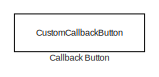
[diagram: root canvas - part 1/4, top center region]
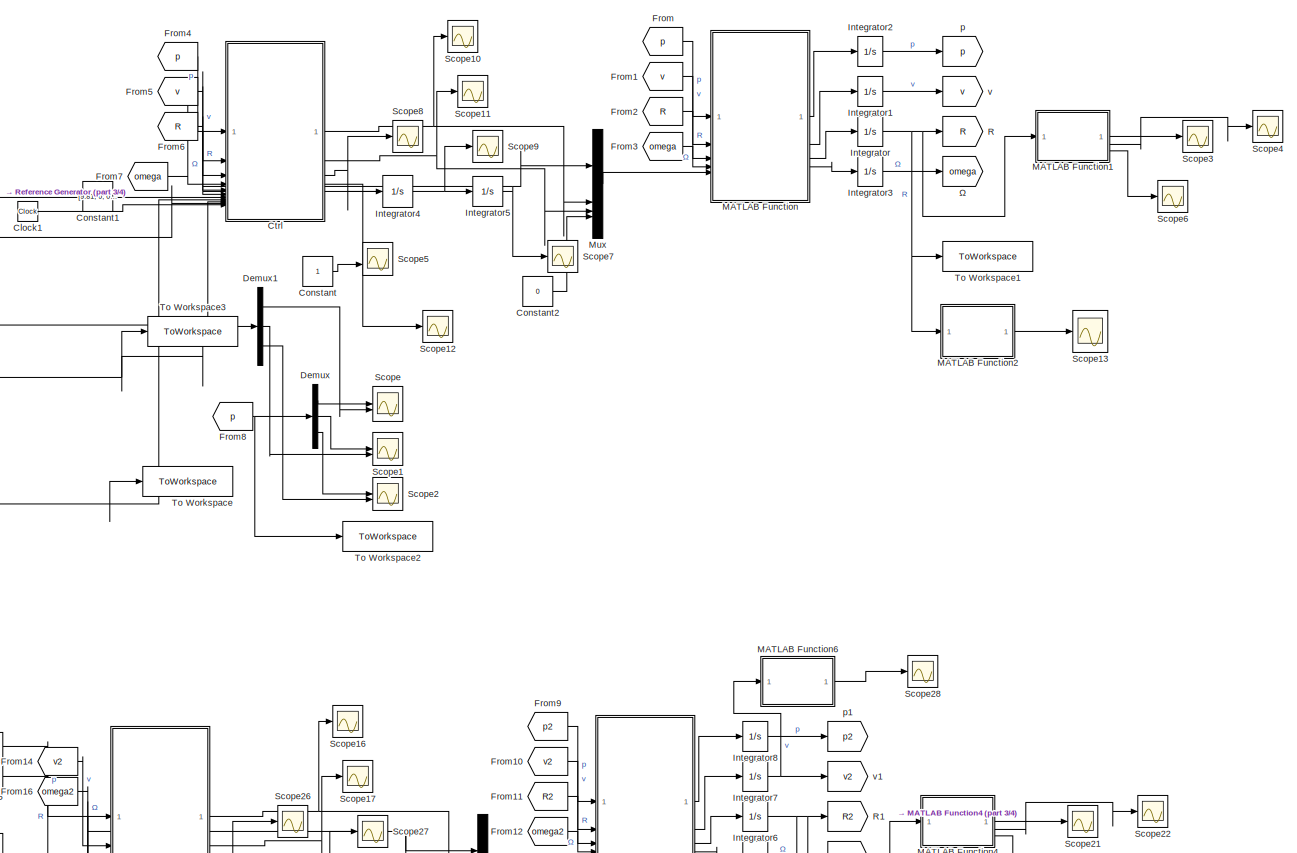
[diagram: root canvas - part 2/4, full width, middle band]
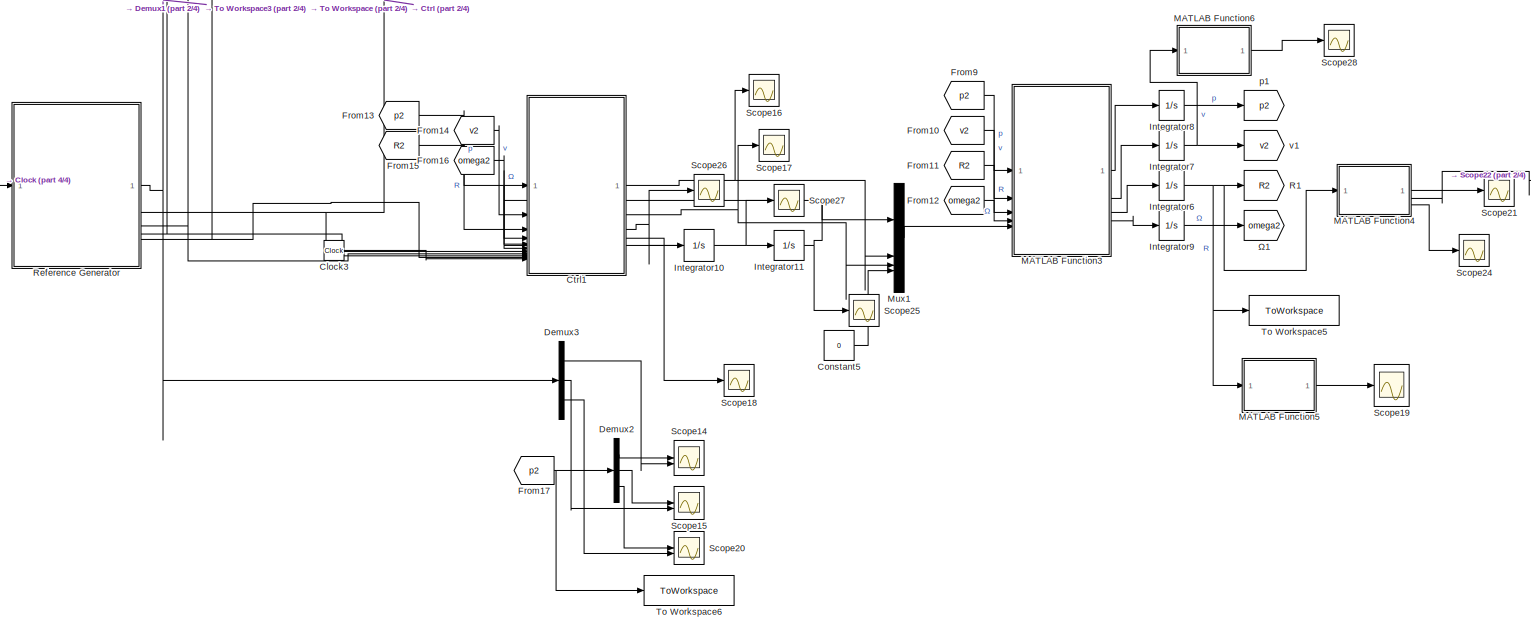
[diagram: root canvas - part 3/4, full width, bottom band]
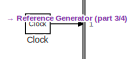
[diagram: root canvas - part 4/4, bottom left region]
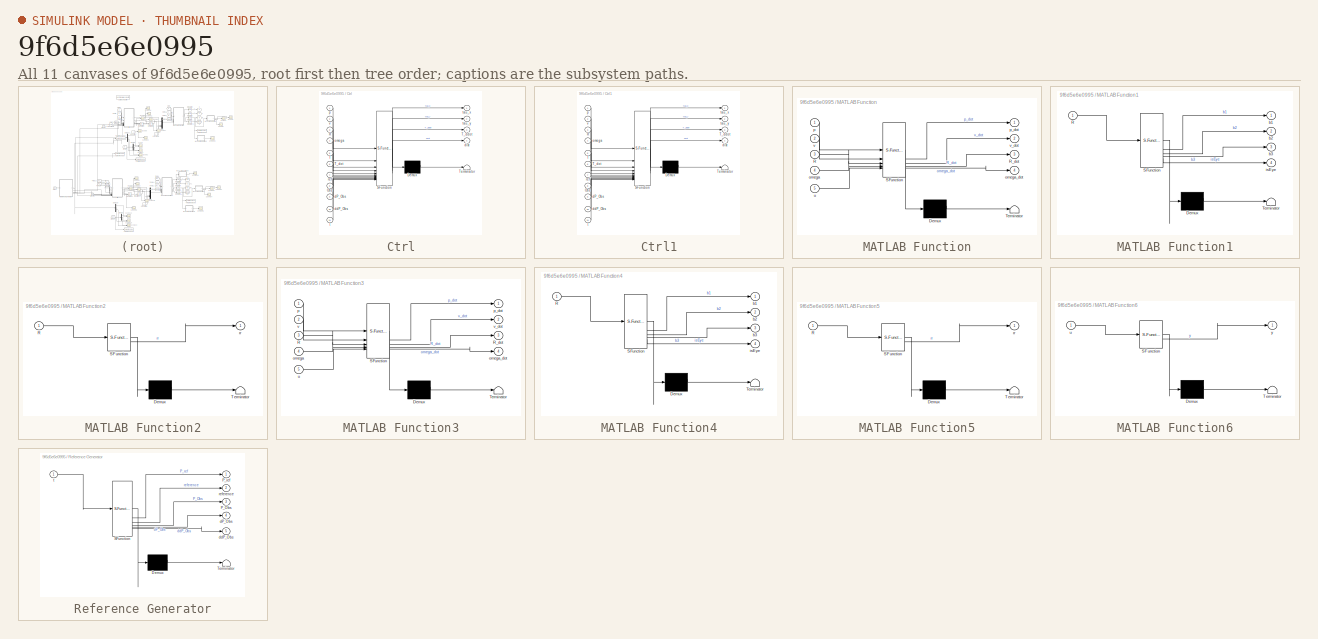
[diagram: thumbnail index - all 11 canvases of the model, root first then tree order]
MODEL slx_9f6d5e6e0995
KIND model
CONFIG AbsTol = auto
CONFIG EnableMultiTasking = on
CONFIG FixedStep = 0.001
CONFIG MaxStep = auto
CONFIG MinStep = auto
CONFIG RelTol = 1e-3
CONFIG SampleTimeConstraint = Unconstrained
CONFIG SolverName = VariableStepAuto
CONFIG StartTime = 0.0
CONFIG StopTime = 40
BLOCK [CustomCallbackButton] Callback Button
  Configuration = {"components":[{"name":"BackgroundImageComponent","settings":{"image":{"size":[0,0],"src":"default","srcOrientation":"Right"},"position":[0,0,1,1]}},{"name":"ButtonStateComponent","settings":{"buttonType":"momentary","clickFcn":"p0 = [10 0 0]';\nv0 = [-0.5 4.5 1]';\nR0 = eye(3);\n\nomega_0 = [0 0 0]';","onValue":1,"position":[0,0,1,1],"pressDelay":"500","pressFcn":"","repeatInterval":"0","states":...<+2132ch>
  CustomBackgroundColor = {"color":[0.9568627450980393,0.9568627450980393,0.9568627450980393],"show":true}
BLOCK [Clock] Clock
BLOCK [Clock] Clock1
BLOCK [Clock] Clock3
BLOCK [Constant] Constant
BLOCK [Constant] Constant1
  Value = [9.81; 0; 0; 0.0]
BLOCK [Constant] Constant2
  Value = 0
BLOCK [Constant] Constant5
  Value = 0
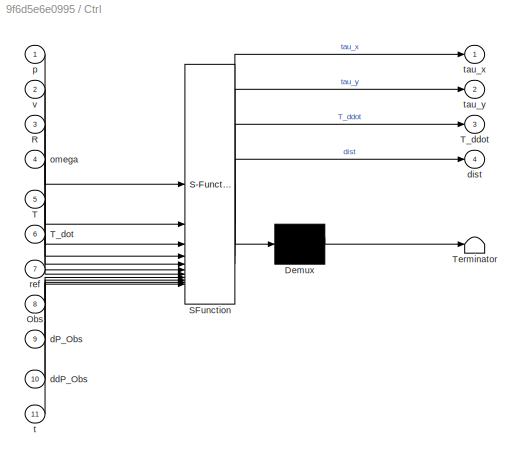
BLOCK [SubSystem] Ctrl
  ErrorFcn = Stateflow.Translate.translate
  PermitHierarchicalResolution = ExplicitOnly
  SFBlockType = MATLAB Function
  TreatAsAtomicUnit = on
BLOCK [Demux] Ctrl/ Demux 
  Outputs = 1
BLOCK [S-Function] Ctrl/ SFunction 
  EnableBusSupport = on
  FunctionName = sf_sfun
  PortCounts = [11 5]
  SFcnIsStateOwnerBlock = off
  SFunctionDeploymentMode = off
  Tag = Stateflow S-Function 3
BLOCK [Terminator] Ctrl/ Terminator 
BLOCK [Inport] Ctrl/Obs
  Port = 8
BLOCK [Inport] Ctrl/R
  Port = 3
BLOCK [Inport] Ctrl/T
  Port = 5
BLOCK [Outport] Ctrl/T_ddot
  Port = 3
BLOCK [Inport] Ctrl/T_dot
  Port = 6
BLOCK [Inport] Ctrl/dP_Obs
  Port = 9
BLOCK [Inport] Ctrl/ddP_Obs
  Port = 10
BLOCK [Outport] Ctrl/dist
  Port = 4
BLOCK [Inport] Ctrl/omega
  Port = 4
BLOCK [Inport] Ctrl/p
BLOCK [Inport] Ctrl/ref
  Port = 7
BLOCK [Inport] Ctrl/t
  Port = 11
BLOCK [Outport] Ctrl/tau_x
BLOCK [Outport] Ctrl/tau_y
  Port = 2
BLOCK [Inport] Ctrl/v
  Port = 2
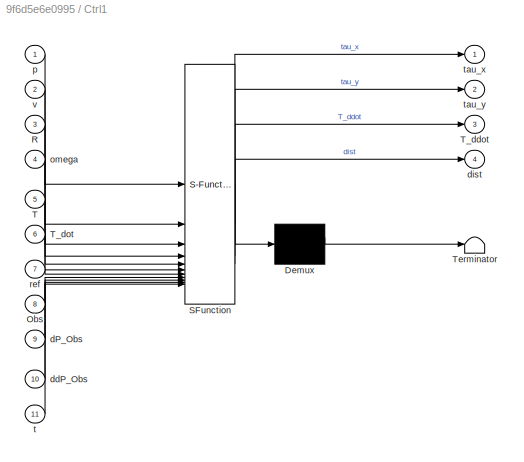
BLOCK [SubSystem] Ctrl1
  ErrorFcn = Stateflow.Translate.translate
  PermitHierarchicalResolution = ExplicitOnly
  SFBlockType = MATLAB Function
  TreatAsAtomicUnit = on
BLOCK [Demux] Ctrl1/ Demux 
  Outputs = 1
BLOCK [S-Function] Ctrl1/ SFunction 
  EnableBusSupport = on
  FunctionName = sf_sfun
  PortCounts = [11 5]
  SFcnIsStateOwnerBlock = off
  SFunctionDeploymentMode = off
  Tag = Stateflow S-Function 6
BLOCK [Terminator] Ctrl1/ Terminator 
BLOCK [Inport] Ctrl1/Obs
  Port = 8
BLOCK [Inport] Ctrl1/R
  Port = 3
BLOCK [Inport] Ctrl1/T
  Port = 5
BLOCK [Outport] Ctrl1/T_ddot
  Port = 3
BLOCK [Inport] Ctrl1/T_dot
  Port = 6
BLOCK [Inport] Ctrl1/dP_Obs
  Port = 9
BLOCK [Inport] Ctrl1/ddP_Obs
  Port = 10
BLOCK [Outport] Ctrl1/dist
  Port = 4
BLOCK [Inport] Ctrl1/omega
  Port = 4
BLOCK [Inport] Ctrl1/p
BLOCK [Inport] Ctrl1/ref
  Port = 7
BLOCK [Inport] Ctrl1/t
  Port = 11
BLOCK [Outport] Ctrl1/tau_x
BLOCK [Outport] Ctrl1/tau_y
  Port = 2
BLOCK [Inport] Ctrl1/v
  Port = 2
BLOCK [Demux] Demux
  Outputs = 3
BLOCK [Demux] Demux1
  Outputs = 3
BLOCK [Demux] Demux2
  Outputs = 3
BLOCK [Demux] Demux3
  Outputs = 3
BLOCK [From] From
  GotoTag = p
  TagVisibility = global
BLOCK [From] From1
  GotoTag = v
  TagVisibility = global
BLOCK [From] From10
  GotoTag = v2
  TagVisibility = global
BLOCK [From] From11
  GotoTag = R2
  TagVisibility = global
BLOCK [From] From12
  GotoTag = omega2
  IconDisplay = Signal name
  TagVisibility = global
BLOCK [From] From13
  GotoTag = p2
  TagVisibility = global
BLOCK [From] From14
  GotoTag = v2
  TagVisibility = global
BLOCK [From] From15
  GotoTag = R2
  TagVisibility = global
BLOCK [From] From16
  GotoTag = omega2
  IconDisplay = Signal name
  TagVisibility = global
BLOCK [From] From17
  GotoTag = p2
  TagVisibility = global
BLOCK [From] From2
  GotoTag = R
  TagVisibility = global
BLOCK [From] From3
  GotoTag = omega
  IconDisplay = Signal name
  TagVisibility = global
BLOCK [From] From4
  GotoTag = p
  TagVisibility = global
BLOCK [From] From5
  GotoTag = v
  TagVisibility = global
BLOCK [From] From6
  GotoTag = R
  TagVisibility = global
BLOCK [From] From7
  GotoTag = omega
  IconDisplay = Signal name
  TagVisibility = global
BLOCK [From] From8
  GotoTag = p
  TagVisibility = global
BLOCK [From] From9
  GotoTag = p2
  TagVisibility = global
BLOCK [Integrator] Integrator
  InitialCondition = R0
BLOCK [Integrator] Integrator1
  InitialCondition = v0
BLOCK [Integrator] Integrator10
  LowerSaturationLimit = -10^6
  UpperSaturationLimit = 0
BLOCK [Integrator] Integrator11
  InitialCondition = 9.81
  LowerSaturationLimit = -1000
  UpperSaturationLimit = 1000
BLOCK [Integrator] Integrator2
  InitialCondition = p0
BLOCK [Integrator] Integrator3
  InitialCondition = omega_0
BLOCK [Integrator] Integrator4
  LowerSaturationLimit = -10^6
  UpperSaturationLimit = 0
BLOCK [Integrator] Integrator5
  InitialCondition = 9.81
  LowerSaturationLimit = -1000
  UpperSaturationLimit = 1000
BLOCK [Integrator] Integrator6
  InitialCondition = R0
BLOCK [Integrator] Integrator7
  InitialCondition = v0
BLOCK [Integrator] Integrator8
  InitialCondition = p0
BLOCK [Integrator] Integrator9
  InitialCondition = omega_0
BLOCK [SubSystem] MATLAB Function
  ErrorFcn = Stateflow.Translate.translate
  PermitHierarchicalResolution = ExplicitOnly
  SFBlockType = MATLAB Function
  TreatAsAtomicUnit = on
BLOCK [Demux] MATLAB Function/ Demux 
  Outputs = 1
BLOCK [S-Function] MATLAB Function/ SFunction 
  EnableBusSupport = on
  FunctionName = sf_sfun
  PortCounts = [5 5]
  SFcnIsStateOwnerBlock = off
  SFunctionDeploymentMode = off
  Tag = Stateflow S-Function 2
BLOCK [Terminator] MATLAB Function/ Terminator 
BLOCK [Inport] MATLAB Function/R
  Port = 3
BLOCK [Outport] MATLAB Function/R_dot
  Port = 3
BLOCK [Inport] MATLAB Function/omega
  Port = 4
BLOCK [Outport] MATLAB Function/omega_dot
  Port = 4
BLOCK [Inport] MATLAB Function/p
BLOCK [Outport] MATLAB Function/p_dot
BLOCK [Inport] MATLAB Function/u
  Port = 5
BLOCK [Inport] MATLAB Function/v
  Port = 2
BLOCK [Outport] MATLAB Function/v_dot
  Port = 2
BLOCK [SubSystem] MATLAB Function1
  ErrorFcn = Stateflow.Translate.translate
  PermitHierarchicalResolution = ExplicitOnly
  SFBlockType = MATLAB Function
  TreatAsAtomicUnit = on
BLOCK [Demux] MATLAB Function1/ Demux 
  Outputs = 1
BLOCK [S-Function] MATLAB Function1/ SFunction 
  EnableBusSupport = on
  FunctionName = sf_sfun
  PortCounts = [1 5]
  SFcnIsStateOwnerBlock = off
  SFunctionDeploymentMode = off
  Tag = Stateflow S-Function 1
BLOCK [Terminator] MATLAB Function1/ Terminator 
BLOCK [Inport] MATLAB Function1/R
BLOCK [Outport] MATLAB Function1/b1
BLOCK [Outport] MATLAB Function1/b2
  Port = 2
BLOCK [Outport] MATLAB Function1/b3
  Port = 3
BLOCK [Outport] MATLAB Function1/isEye
  Port = 4
BLOCK [SubSystem] MATLAB Function2
  ErrorFcn = Stateflow.Translate.translate
  PermitHierarchicalResolution = ExplicitOnly
  SFBlockType = MATLAB Function
  TreatAsAtomicUnit = on
BLOCK [Demux] MATLAB Function2/ Demux 
  Outputs = 1
BLOCK [S-Function] MATLAB Function2/ SFunction 
  EnableBusSupport = on
  FunctionName = sf_sfun
  PortCounts = [1 2]
  SFcnIsStateOwnerBlock = off
  SFunctionDeploymentMode = off
  Tag = Stateflow S-Function 4
BLOCK [Terminator] MATLAB Function2/ Terminator 
BLOCK [Inport] MATLAB Function2/R
BLOCK [Outport] MATLAB Function2/rr
BLOCK [SubSystem] MATLAB Function3
  ErrorFcn = Stateflow.Translate.translate
  PermitHierarchicalResolution = ExplicitOnly
  SFBlockType = MATLAB Function
  TreatAsAtomicUnit = on
BLOCK [Demux] MATLAB Function3/ Demux 
  Outputs = 1
BLOCK [S-Function] MATLAB Function3/ SFunction 
  EnableBusSupport = on
  FunctionName = sf_sfun
  PortCounts = [5 5]
  SFcnIsStateOwnerBlock = off
  SFunctionDeploymentMode = off
  Tag = Stateflow S-Function 7
BLOCK [Terminator] MATLAB Function3/ Terminator 
BLOCK [Inport] MATLAB Function3/R
  Port = 3
BLOCK [Outport] MATLAB Function3/R_dot
  Port = 3
BLOCK [Inport] MATLAB Function3/omega
  Port = 4
BLOCK [Outport] MATLAB Function3/omega_dot
  Port = 4
BLOCK [Inport] MATLAB Function3/p
BLOCK [Outport] MATLAB Function3/p_dot
BLOCK [Inport] MATLAB Function3/u
  Port = 5
BLOCK [Inport] MATLAB Function3/v
  Port = 2
BLOCK [Outport] MATLAB Function3/v_dot
  Port = 2
BLOCK [SubSystem] MATLAB Function4
  ErrorFcn = Stateflow.Translate.translate
  PermitHierarchicalResolution = ExplicitOnly
  SFBlockType = MATLAB Function
  TreatAsAtomicUnit = on
BLOCK [Demux] MATLAB Function4/ Demux 
  Outputs = 1
BLOCK [S-Function] MATLAB Function4/ SFunction 
  EnableBusSupport = on
  FunctionName = sf_sfun
  PortCounts = [1 5]
  SFcnIsStateOwnerBlock = off
  SFunctionDeploymentMode = off
  Tag = Stateflow S-Function 8
BLOCK [Terminator] MATLAB Function4/ Terminator 
BLOCK [Inport] MATLAB Function4/R
BLOCK [Outport] MATLAB Function4/b1
BLOCK [Outport] MATLAB Function4/b2
  Port = 2
BLOCK [Outport] MATLAB Function4/b3
  Port = 3
BLOCK [Outport] MATLAB Function4/isEye
  Port = 4
BLOCK [SubSystem] MATLAB Function5
  ErrorFcn = Stateflow.Translate.translate
  PermitHierarchicalResolution = ExplicitOnly
  SFBlockType = MATLAB Function
  TreatAsAtomicUnit = on
BLOCK [Demux] MATLAB Function5/ Demux 
  Outputs = 1
BLOCK [S-Function] MATLAB Function5/ SFunction 
  EnableBusSupport = on
  FunctionName = sf_sfun
  PortCounts = [1 2]
  SFcnIsStateOwnerBlock = off
  SFunctionDeploymentMode = off
  Tag = Stateflow S-Function 9
BLOCK [Terminator] MATLAB Function5/ Terminator 
BLOCK [Inport] MATLAB Function5/R
BLOCK [Outport] MATLAB Function5/rr
BLOCK [SubSystem] MATLAB Function6
  ErrorFcn = Stateflow.Translate.translate
  PermitHierarchicalResolution = ExplicitOnly
  SFBlockType = MATLAB Function
  TreatAsAtomicUnit = on
BLOCK [Demux] MATLAB Function6/ Demux 
  Outputs = 1
BLOCK [S-Function] MATLAB Function6/ SFunction 
  EnableBusSupport = on
  FunctionName = sf_sfun
  PortCounts = [1 2]
  SFcnIsStateOwnerBlock = off
  SFunctionDeploymentMode = off
  Tag = Stateflow S-Function 11
BLOCK [Terminator] MATLAB Function6/ Terminator 
BLOCK [Inport] MATLAB Function6/u
BLOCK [Outport] MATLAB Function6/y
BLOCK [Mux] Mux
  DisplayOption = bar
BLOCK [Mux] Mux1
  DisplayOption = bar
BLOCK [Goto] R
  GotoTag = R
  NameLocation = right
  TagVisibility = global
BLOCK [Goto] R1
  GotoTag = R2
  NameLocation = right
  TagVisibility = global
BLOCK [SubSystem] Reference Generator
  ErrorFcn = Stateflow.Translate.translate
  PermitHierarchicalResolution = ExplicitOnly
  SFBlockType = MATLAB Function
  TreatAsAtomicUnit = on
BLOCK [Demux] Reference Generator/ Demux 
  Outputs = 1
BLOCK [S-Function] Reference Generator/ SFunction 
  EnableBusSupport = on
  FunctionName = sf_sfun
  PortCounts = [1 6]
  SFcnIsStateOwnerBlock = off
  SFunctionDeploymentMode = off
  Tag = Stateflow S-Function 5
BLOCK [Terminator] Reference Generator/ Terminator 
BLOCK [Outport] Reference Generator/P_Obs
  Port = 3
BLOCK [Outport] Reference Generator/P_ref
BLOCK [Outport] Reference Generator/dP_Obs
  Port = 4
BLOCK [Outport] Reference Generator/ddP_Obs
  Port = 5
BLOCK [Outport] Reference Generator/reference
  Port = 2
BLOCK [Inport] Reference Generator/t
BLOCK [Scope] Scope
  Floating = off
  NumInputPorts = 2
  ScopeSpecificationString = Simulink.scopes.TimeScopeBlockCfg('CurrentConfiguration', extmgr.ConfigurationSet(extmgr.Configuration('Core','General UI',true),extmgr.Configuration('Core','Source UI',true),extmgr.Configuration('Sources','WiredSimulink',true),extmgr.Configuration('Visuals','Time Domain',true,'SerializedDisplays',{struct('MinYLimReal','-14.68395','MaxYLimReal','20.03251','YLabelReal','','MinYLimMag','0.00000','Ma...<+1479ch>
BLOCK [Scope] Scope1
  Floating = off
  NumInputPorts = 2
  ScopeSpecificationString = Simulink.scopes.TimeScopeBlockCfg('CurrentConfiguration', extmgr.ConfigurationSet(extmgr.Configuration('Core','General UI',true),extmgr.Configuration('Core','Source UI',true),extmgr.Configuration('Sources','WiredSimulink',true,'DataLoggingVariableName','ScopeData1'),extmgr.Configuration('Visuals','Time Domain',true,'SerializedDisplays',{struct('MinYLimReal','-12.71877','MaxYLimReal','14.4718','YLa...<+1541ch>
BLOCK [Scope] Scope10
  Floating = off
  NumInputPorts = 1
  ScopeSpecificationString = Simulink.scopes.TimeScopeBlockCfg('CurrentConfiguration', extmgr.ConfigurationSet(extmgr.Configuration('Core','General UI',true),extmgr.Configuration('Core','Source UI',true),extmgr.Configuration('Sources','WiredSimulink',true,'DataLoggingVariableName','ScopeData4'),extmgr.Configuration('Visuals','Time Domain',true,'SerializedDisplays',{struct('MinYLimReal','-0.97119','MaxYLimReal','0.66096','YLab...<+1504ch>
BLOCK [Scope] Scope11
  Floating = off
  NumInputPorts = 1
  ScopeSpecificationString = Simulink.scopes.TimeScopeBlockCfg('CurrentConfiguration', extmgr.ConfigurationSet(extmgr.Configuration('Core','General UI',true),extmgr.Configuration('Core','Source UI',true),extmgr.Configuration('Sources','WiredSimulink',true,'DataLoggingVariableName','ScopeData1'),extmgr.Configuration('Visuals','Time Domain',true,'SerializedDisplays',{struct('MinYLimReal','-1.02087','MaxYLimReal','0.48265','YLab...<+1502ch>
BLOCK [Scope] Scope12
  Floating = off
  NumInputPorts = 1
  ScopeSpecificationString = Simulink.scopes.TimeScopeBlockCfg('CurrentConfiguration', extmgr.ConfigurationSet(extmgr.Configuration('Core','General UI',true),extmgr.Configuration('Core','Source UI',true),extmgr.Configuration('Sources','WiredSimulink',true,'DataLoggingVariableName','ScopeData1'),extmgr.Configuration('Visuals','Time Domain',true,'SerializedDisplays',{struct('MinYLimReal','34.16573','MaxYLimReal','37.03978','YLa...<+1482ch>
BLOCK [Scope] Scope13
  Floating = off
  NumInputPorts = 1
  ScopeSpecificationString = Simulink.scopes.TimeScopeBlockCfg('CurrentConfiguration', extmgr.ConfigurationSet(extmgr.Configuration('Core','General UI',true),extmgr.Configuration('Core','Source UI',true),extmgr.Configuration('Sources','WiredSimulink',true,'DataLoggingVariableName','ScopeData1'),extmgr.Configuration('Visuals','Time Domain',true,'SerializedDisplays',{struct('MinYLimReal','-224.08054','MaxYLimReal','224.21434','...<+1570ch>
BLOCK [Scope] Scope14
  Floating = off
  NumInputPorts = 2
  ScopeSpecificationString = Simulink.scopes.TimeScopeBlockCfg('CurrentConfiguration', extmgr.ConfigurationSet(extmgr.Configuration('Core','General UI',true),extmgr.Configuration('Core','Source UI',true),extmgr.Configuration('Sources','WiredSimulink',true,'DataLoggingVariableName','ScopeData2'),extmgr.Configuration('Visuals','Time Domain',true,'SerializedDisplays',{struct('MinYLimReal','-14.68395','MaxYLimReal','20.03251','YL...<+1519ch>
BLOCK [Scope] Scope15
  Floating = off
  NumInputPorts = 2
  ScopeSpecificationString = Simulink.scopes.TimeScopeBlockCfg('CurrentConfiguration', extmgr.ConfigurationSet(extmgr.Configuration('Core','General UI',true),extmgr.Configuration('Core','Source UI',true),extmgr.Configuration('Sources','WiredSimulink',true,'DataLoggingVariableName','ScopeData3'),extmgr.Configuration('Visuals','Time Domain',true,'SerializedDisplays',{struct('MinYLimReal','-12.71877','MaxYLimReal','14.4718','YLa...<+1542ch>
BLOCK [Scope] Scope16
  Floating = off
  NumInputPorts = 1
  ScopeSpecificationString = Simulink.scopes.TimeScopeBlockCfg('CurrentConfiguration', extmgr.ConfigurationSet(extmgr.Configuration('Core','General UI',true),extmgr.Configuration('Core','Source UI',true),extmgr.Configuration('Sources','WiredSimulink',true,'DataLoggingVariableName','ScopeData4'),extmgr.Configuration('Visuals','Time Domain',true,'SerializedDisplays',{struct('MinYLimReal','-0.97119','MaxYLimReal','0.66096','YLab...<+1504ch>
BLOCK [Scope] Scope17
  Floating = off
  NumInputPorts = 1
  ScopeSpecificationString = Simulink.scopes.TimeScopeBlockCfg('CurrentConfiguration', extmgr.ConfigurationSet(extmgr.Configuration('Core','General UI',true),extmgr.Configuration('Core','Source UI',true),extmgr.Configuration('Sources','WiredSimulink',true,'DataLoggingVariableName','ScopeData5'),extmgr.Configuration('Visuals','Time Domain',true,'SerializedDisplays',{struct('MinYLimReal','-1.02087','MaxYLimReal','0.48265','YLab...<+1502ch>
BLOCK [Scope] Scope18
  Floating = off
  NumInputPorts = 1
  ScopeSpecificationString = Simulink.scopes.TimeScopeBlockCfg('CurrentConfiguration', extmgr.ConfigurationSet(extmgr.Configuration('Core','General UI',true),extmgr.Configuration('Core','Source UI',true),extmgr.Configuration('Sources','WiredSimulink',true,'DataLoggingVariableName','ScopeData6'),extmgr.Configuration('Visuals','Time Domain',true,'SerializedDisplays',{struct('MinYLimReal','34.16573','MaxYLimReal','37.03978','YLa...<+1482ch>
BLOCK [Scope] Scope19
  Floating = off
  NumInputPorts = 1
  ScopeSpecificationString = Simulink.scopes.TimeScopeBlockCfg('CurrentConfiguration', extmgr.ConfigurationSet(extmgr.Configuration('Core','General UI',true),extmgr.Configuration('Core','Source UI',true),extmgr.Configuration('Sources','WiredSimulink',true,'DataLoggingVariableName','ScopeData7'),extmgr.Configuration('Visuals','Time Domain',true,'SerializedDisplays',{struct('MinYLimReal','-224.08054','MaxYLimReal','224.21434','...<+1570ch>
BLOCK [Scope] Scope2
  Floating = off
  NumInputPorts = 2
  ScopeSpecificationString = Simulink.scopes.TimeScopeBlockCfg('CurrentConfiguration', extmgr.ConfigurationSet(extmgr.Configuration('Core','General UI',true),extmgr.Configuration('Core','Source UI',true),extmgr.Configuration('Sources','WiredSimulink',true,'DataLoggingVariableName','ScopeData2'),extmgr.Configuration('Visuals','Time Domain',true,'SerializedDisplays',{struct('MinYLimReal','-5.06384','MaxYLimReal','14.06358','YLa...<+1543ch>
BLOCK [Scope] Scope20
  Floating = off
  NumInputPorts = 2
  ScopeSpecificationString = Simulink.scopes.TimeScopeBlockCfg('CurrentConfiguration', extmgr.ConfigurationSet(extmgr.Configuration('Core','General UI',true),extmgr.Configuration('Core','Source UI',true),extmgr.Configuration('Sources','WiredSimulink',true,'DataLoggingVariableName','ScopeData8'),extmgr.Configuration('Visuals','Time Domain',true,'SerializedDisplays',{struct('MinYLimReal','-7.71246','MaxYLimReal','4.37252','YLab...<+1540ch>
BLOCK [Scope] Scope21
  Floating = off
  NumInputPorts = 1
  ScopeSpecificationString = Simulink.scopes.TimeScopeBlockCfg('CurrentConfiguration', extmgr.ConfigurationSet(extmgr.Configuration('Core','General UI',true),extmgr.Configuration('Core','Source UI',true),extmgr.Configuration('Sources','WiredSimulink',true,'DataLoggingVariableName','ScopeData9'),extmgr.Configuration('Visuals','Time Domain',true,'SerializedDisplays',{struct('MinYLimReal','0.99906','MaxYLimReal','1.0001','YLabel...<+1461ch>
BLOCK [Scope] Scope22
  Floating = off
  NumInputPorts = 1
  ScopeSpecificationString = Simulink.scopes.TimeScopeBlockCfg('CurrentConfiguration', extmgr.ConfigurationSet(extmgr.Configuration('Core','General UI',true),extmgr.Configuration('Core','Source UI',true),extmgr.Configuration('Sources','WiredSimulink',true,'DataLoggingVariableName','ScopeData10'),extmgr.Configuration('Visuals','Time Domain',true,'SerializedDisplays',{struct('MinYLimReal','0.98055','MaxYLimReal','1.00216','YLab...<+1466ch>
BLOCK [Scope] Scope24
  Floating = off
  NumInputPorts = 1
  ScopeSpecificationString = Simulink.scopes.TimeScopeBlockCfg('CurrentConfiguration', extmgr.ConfigurationSet(extmgr.Configuration('Core','General UI',true),extmgr.Configuration('Core','Source UI',true),extmgr.Configuration('Sources','WiredSimulink',true,'DataLoggingVariableName','ScopeData12'),extmgr.Configuration('Visuals','Time Domain',true,'SerializedDisplays',{struct('MinYLimReal','-0.000012','MaxYLimReal','0.000001','Y...<+1535ch>
BLOCK [Scope] Scope25
  Floating = off
  NumInputPorts = 1
  ScopeSpecificationString = Simulink.scopes.TimeScopeBlockCfg('CurrentConfiguration', extmgr.ConfigurationSet(extmgr.Configuration('Core','General UI',true),extmgr.Configuration('Core','Source UI',true),extmgr.Configuration('Sources','WiredSimulink',true,'DataLoggingVariableName','ScopeData13'),extmgr.Configuration('Visuals','Time Domain',true,'SerializedDisplays',{struct('MinYLimReal','9.46273','MaxYLimReal','12.00036','YLa...<+1506ch>
BLOCK [Scope] Scope26
  Floating = off
  NumInputPorts = 1
  ScopeSpecificationString = Simulink.scopes.TimeScopeBlockCfg('CurrentConfiguration', extmgr.ConfigurationSet(extmgr.Configuration('Core','General UI',true),extmgr.Configuration('Core','Source UI',true),extmgr.Configuration('Sources','WiredSimulink',true,'DataLoggingVariableName','ScopeData14'),extmgr.Configuration('Visuals','Time Domain',true,'SerializedDisplays',{struct('MinYLimReal','-63.24381','MaxYLimReal','52.93196','Y...<+1485ch>
BLOCK [Scope] Scope27
  Floating = off
  NumInputPorts = 1
  ScopeSpecificationString = Simulink.scopes.TimeScopeBlockCfg('CurrentConfiguration', extmgr.ConfigurationSet(extmgr.Configuration('Core','General UI',true),extmgr.Configuration('Core','Source UI',true),extmgr.Configuration('Sources','WiredSimulink',true,'DataLoggingVariableName','ScopeData15'),extmgr.Configuration('Visuals','Time Domain',true,'SerializedDisplays',{struct('MinYLimReal','-6.34101','MaxYLimReal','6.35909','YLa...<+1460ch>
BLOCK [Scope] Scope28
  Floating = off
  NumInputPorts = 1
  ScopeSpecificationString = Simulink.scopes.TimeScopeBlockCfg('CurrentConfiguration', extmgr.ConfigurationSet(extmgr.Configuration('Core','General UI',true),extmgr.Configuration('Core','Source UI',true),extmgr.Configuration('Sources','WiredSimulink',true,'DataLoggingVariableName','ScopeData1'),extmgr.Configuration('Visuals','Time Domain',true,'SerializedDisplays',{struct('MinYLimReal','-0.34262','MaxYLimReal','18.96988','YLa...<+1468ch>
BLOCK [Scope] Scope3
  Floating = off
  NumInputPorts = 1
  ScopeSpecificationString = Simulink.scopes.TimeScopeBlockCfg('CurrentConfiguration', extmgr.ConfigurationSet(extmgr.Configuration('Core','General UI',true),extmgr.Configuration('Core','Source UI',true),extmgr.Configuration('Sources','WiredSimulink',true,'DataLoggingVariableName','ScopeData3'),extmgr.Configuration('Visuals','Time Domain',true,'SerializedDisplays',{struct('MinYLimReal','0.99906','MaxYLimReal','1.0001','YLabel...<+1461ch>
BLOCK [Scope] Scope4
  Floating = off
  NumInputPorts = 1
  ScopeSpecificationString = Simulink.scopes.TimeScopeBlockCfg('CurrentConfiguration', extmgr.ConfigurationSet(extmgr.Configuration('Core','General UI',true),extmgr.Configuration('Core','Source UI',true),extmgr.Configuration('Sources','WiredSimulink',true,'DataLoggingVariableName','ScopeData4'),extmgr.Configuration('Visuals','Time Domain',true,'SerializedDisplays',{struct('MinYLimReal','0.98055','MaxYLimReal','1.00216','YLabe...<+1465ch>
BLOCK [Scope] Scope5
  Floating = off
  NumInputPorts = 2
  ScopeSpecificationString = Simulink.scopes.TimeScopeBlockCfg('CurrentConfiguration', extmgr.ConfigurationSet(extmgr.Configuration('Core','General UI',true),extmgr.Configuration('Core','Source UI',true),extmgr.Configuration('Sources','WiredSimulink',true,'DataLoggingVariableName','ScopeData1'),extmgr.Configuration('Visuals','Time Domain',true,'SerializedDisplays',{struct('MinYLimReal','-2.17486','MaxYLimReal','3.02509','YLab...<+1512ch>
BLOCK [Scope] Scope6
  Floating = off
  NumInputPorts = 1
  ScopeSpecificationString = Simulink.scopes.TimeScopeBlockCfg('CurrentConfiguration', extmgr.ConfigurationSet(extmgr.Configuration('Core','General UI',true),extmgr.Configuration('Core','Source UI',true),extmgr.Configuration('Sources','WiredSimulink',true,'DataLoggingVariableName','ScopeData1'),extmgr.Configuration('Visuals','Time Domain',true,'SerializedDisplays',{struct('MinYLimReal','-0.000012','MaxYLimReal','0.000001','YL...<+1534ch>
BLOCK [Scope] Scope7
  Floating = off
  NumInputPorts = 1
  ScopeSpecificationString = Simulink.scopes.TimeScopeBlockCfg('CurrentConfiguration', extmgr.ConfigurationSet(extmgr.Configuration('Core','General UI',true),extmgr.Configuration('Core','Source UI',true),extmgr.Configuration('Sources','WiredSimulink',true,'DataLoggingVariableName','ScopeData2'),extmgr.Configuration('Visuals','Time Domain',true,'SerializedDisplays',{struct('MinYLimReal','9.46273','MaxYLimReal','12.00036','YLab...<+1505ch>
BLOCK [Scope] Scope8
  Floating = off
  NumInputPorts = 1
  ScopeSpecificationString = Simulink.scopes.TimeScopeBlockCfg('CurrentConfiguration', extmgr.ConfigurationSet(extmgr.Configuration('Core','General UI',true),extmgr.Configuration('Core','Source UI',true),extmgr.Configuration('Sources','WiredSimulink',true,'DataLoggingVariableName','ScopeData2'),extmgr.Configuration('Visuals','Time Domain',true,'SerializedDisplays',{struct('MinYLimReal','-63.24381','MaxYLimReal','52.93196','YL...<+1484ch>
BLOCK [Scope] Scope9
  Floating = off
  NumInputPorts = 1
  ScopeSpecificationString = Simulink.scopes.TimeScopeBlockCfg('CurrentConfiguration', extmgr.ConfigurationSet(extmgr.Configuration('Core','General UI',true),extmgr.Configuration('Core','Source UI',true),extmgr.Configuration('Sources','WiredSimulink',true,'DataLoggingVariableName','ScopeData3'),extmgr.Configuration('Visuals','Time Domain',true,'SerializedDisplays',{struct('MinYLimReal','-6.34101','MaxYLimReal','6.35909','YLab...<+1459ch>
BLOCK [ToWorkspace] To Workspace
  FixptAsFi = on
  MaxDataPoints = inf
  SampleTime = 0.1
  SaveFormat = Structure With Time
  VariableName = Obstacles
BLOCK [ToWorkspace] To Workspace1
  FixptAsFi = on
  MaxDataPoints = inf
  SampleTime = 0.1
  SaveFormat = Structure With Time
  VariableName = Attitude
BLOCK [ToWorkspace] To Workspace2
  FixptAsFi = on
  MaxDataPoints = inf
  SampleTime = 0.1
  SaveFormat = Structure With Time
  VariableName = Position
BLOCK [ToWorkspace] To Workspace3
  FixptAsFi = on
  MaxDataPoints = inf
  SampleTime = 0.1
  SaveFormat = Structure With Time
  VariableName = Reference
BLOCK [ToWorkspace] To Workspace5
  FixptAsFi = on
  MaxDataPoints = inf
  SampleTime = 0.1
  SaveFormat = Structure With Time
  VariableName = Attitude2
BLOCK [ToWorkspace] To Workspace6
  FixptAsFi = on
  MaxDataPoints = inf
  SampleTime = 0.1
  SaveFormat = Structure With Time
  VariableName = Position2
BLOCK [Goto] p
  GotoTag = p
  NameLocation = right
  TagVisibility = global
BLOCK [Goto] p1
  GotoTag = p2
  NameLocation = right
  TagVisibility = global
BLOCK [Goto] v
  GotoTag = v
  NameLocation = right
  TagVisibility = global
BLOCK [Goto] v1
  GotoTag = v2
  NameLocation = right
  TagVisibility = global
BLOCK [Goto] Ω
  GotoTag = omega
  IconDisplay = Signal name
  NameLocation = right
  TagVisibility = global
BLOCK [Goto] Ω1
  GotoTag = omega2
  IconDisplay = Signal name
  NameLocation = right
  TagVisibility = global
LINE Clock1:1 -> Ctrl:11
LINE Clock3:1 -> Ctrl1:11
LINE Clock:1 -> Reference Generator:1
LINE Constant2:1 -> Mux:4
LINE Constant5:1 -> Mux1:4
LINE Constant:1 -> Scope5:2
NET Ctrl1:1 -> Mux1:2, Scope16:1
NET Ctrl1:2 -> Mux1:3, Scope17:1
NET Ctrl1:3 -> Integrator10:1, Scope26:1
LINE Ctrl1:4 -> Scope18:1
NET Ctrl:1 -> Mux:2, Scope10:1
NET Ctrl:2 -> Mux:3, Scope11:1
NET Ctrl:3 -> Integrator4:1, Scope8:1
LINE Ctrl:4 -> Scope12:1
LINE Demux1:1 -> Scope:2
LINE Demux1:2 -> Scope1:2
LINE Demux1:3 -> Scope2:2
LINE Demux2:1 -> Scope14:1
LINE Demux2:2 -> Scope15:1
LINE Demux2:3 -> Scope20:1
LINE Demux3:1 -> Scope14:2
LINE Demux3:2 -> Scope15:2
LINE Demux3:3 -> Scope20:2
LINE Demux:1 -> Scope:1
LINE Demux:2 -> Scope1:1
LINE Demux:3 -> Scope2:1
LINE From10:1 -> MATLAB Function3:2
LINE From11:1 -> MATLAB Function3:3
LINE From12:1 -> MATLAB Function3:4
LINE From13:1 -> Ctrl1:1
LINE From14:1 -> Ctrl1:2
LINE From15:1 -> Ctrl1:3
LINE From16:1 -> Ctrl1:4
NET From17:1 -> Demux2:1, To Workspace6:1
LINE From1:1 -> MATLAB Function:2
LINE From2:1 -> MATLAB Function:3
LINE From3:1 -> MATLAB Function:4
LINE From4:1 -> Ctrl:1
LINE From5:1 -> Ctrl:2
LINE From6:1 -> Ctrl:3
LINE From7:1 -> Ctrl:4
NET From8:1 -> Demux:1, To Workspace2:1
LINE From9:1 -> MATLAB Function3:1
LINE From:1 -> MATLAB Function:1
NET Integrator10:1 -> Ctrl1:6, Integrator11:1, Scope27:1
NET Integrator11:1 -> Ctrl1:5, Mux1:1, Scope25:1
LINE Integrator1:1 -> v:1
LINE Integrator2:1 -> p:1
LINE Integrator3:1 -> Ω:1
NET Integrator4:1 -> Ctrl:6, Integrator5:1, Scope9:1
NET Integrator5:1 -> Ctrl:5, Mux:1, Scope7:1
NET Integrator6:1 -> MATLAB Function4:1, MATLAB Function5:1, R1:1, To Workspace5:1
NET Integrator7:1 -> MATLAB Function6:1, v1:1
LINE Integrator8:1 -> p1:1
LINE Integrator9:1 -> Ω1:1
NET Integrator:1 -> MATLAB Function1:1, MATLAB Function2:1, R:1, To Workspace1:1
LINE MATLAB Function1:1 -> Scope4:1
LINE MATLAB Function1:2 -> Scope3:1
LINE MATLAB Function1:4 -> Scope6:1
LINE MATLAB Function2:1 -> Scope13:1
LINE MATLAB Function3:1 -> Integrator8:1
LINE MATLAB Function3:2 -> Integrator7:1
LINE MATLAB Function3:3 -> Integrator6:1
LINE MATLAB Function3:4 -> Integrator9:1
LINE MATLAB Function4:1 -> Scope22:1
LINE MATLAB Function4:2 -> Scope21:1
LINE MATLAB Function4:4 -> Scope24:1
LINE MATLAB Function5:1 -> Scope19:1
LINE MATLAB Function6:1 -> Scope28:1
LINE MATLAB Function:1 -> Integrator2:1
LINE MATLAB Function:2 -> Integrator1:1
LINE MATLAB Function:3 -> Integrator:1
LINE MATLAB Function:4 -> Integrator3:1
LINE Mux1:1 -> MATLAB Function3:5
LINE Mux:1 -> MATLAB Function:5
NET Reference Generator:1 -> Demux1:1, Demux3:1, To Workspace3:1
NET Reference Generator:2 -> Ctrl1:7, Ctrl:7
NET Reference Generator:3 -> Ctrl1:8, Ctrl:8, To Workspace:1
NET Reference Generator:4 -> Ctrl1:9, Ctrl:9
NET Reference Generator:5 -> Ctrl1:10, Ctrl:10
note: NET lines group one-source signal fan-out (src -> all destinations, sorted); 1:1 wires keep LINE
CHART MATLAB Function3 states=1 transitions=1
  STATE_LABEL 'eML_blk_kernel()'
  STATE_LABEL "SCRIPT:\nfunction [p_dot, v_dot, R_dot, omega_dot]= drone(p,v,R,omega, u)\n\n% States\nwx = omega(1);\nwy = omega(2);\nwz = omega(3);\n\n% Inputs\nT = u(1);\nTau = u(2:4);\n\n% Parameters\nIx = 0.082;\nIy = 0.0845;\nIz = 0.1377;\nJ = diag([Ix Iy Iz]);\n%J = eye(3)*0.01;%diag([Ix Iy Iz]);\ng = 9.81;\nm = 1;\n\n\ne3 = [0 0 1]';\nS = [0 -wz wy; wz 0 -wx; -wy wx 0];\n\n% Gyroscopic effects\nwx_gyro = 0;\nwy_gyro = 0;\n\nw_gyro = ...<+142ch>"
CHART MATLAB Function4 states=1 transitions=1
  STATE_LABEL 'eML_blk_kernel()'
  STATE_LABEL "SCRIPT:\nfunction [b1,b2,b3, isEye] = fcn(R)\nb1 = dot(R(:,1),[1 0 0]');\nb2 = dot(R(:,2),[0 1 0]');\nb3 = dot(R(:,3),[0 0 1]');\n\nisEye = sum(R*R' - eye(3));\n"
CHART MATLAB Function5 states=1 transitions=1
  STATE_LABEL 'eML_blk_kernel()'
  STATE_LABEL 'SCRIPT:\nfunction rr  = fcn(R)\n\n[rr] = rad2deg(rotm2eul(R));\nend'
CHART MATLAB Function6 states=1 transitions=1
  STATE_LABEL 'eML_blk_kernel()'
  STATE_LABEL 'SCRIPT:\nfunction y = fcn(u)\n\ny = norm(u);\n'
CHART MATLAB Function1 states=1 transitions=1
  STATE_LABEL 'eML_blk_kernel()'
  STATE_LABEL "SCRIPT:\nfunction [b1,b2,b3, isEye] = fcn(R)\nb1 = dot(R(:,1),[1 0 0]');\nb2 = dot(R(:,2),[0 1 0]');\nb3 = dot(R(:,3),[0 0 1]');\n\nisEye = sum(R*R' - eye(3));\n"
CHART MATLAB Function states=1 transitions=1
  STATE_LABEL 'eML_blk_kernel()'
  STATE_LABEL "SCRIPT:\nfunction [p_dot, v_dot, R_dot, omega_dot]= drone(p,v,R,omega, u)\n\n% States\nwx = omega(1);\nwy = omega(2);\nwz = omega(3);\n\n% Inputs\nT = u(1);\nTau = u(2:4);\n\n% Parameters\nIx = 0.082;\nIy = 0.0845;\nIz = 0.1377;\nJ = diag([Ix Iy Iz]);\n%J = eye(3)*0.01;%diag([Ix Iy Iz]);\ng = 9.81;\nm = 1;\n\n\ne3 = [0 0 1]';\nS = [0 -wz wy; wz 0 -wx; -wy wx 0];\n\n% Gyroscopic effects\nwx_gyro = 0;\nwy_gyro = 0;\n\nw_gyro = ...<+142ch>"
CHART Ctrl states=1 transitions=1
  STATE_LABEL 'eML_blk_kernel()'
  STATE_LABEL "SCRIPT:\nfunction [tau_x, tau_y, T_ddot, dist] = control(p,v,R,omega,T , T_dot, ref, Obs, dP_Obs, ddP_Obs, t)\n\nM = diag([1/0.5^2 1/0.5^2 1/0.25^2]);\nmu = 0.8;\nmu2 = 0.007;\ndelta = 20;\n% States\nwx = omega(1);\nwy = omega(2);\nwz = omega(3);\n\n% Parameters\nIx = 0.082;\nIy = 0.0845;\nIz = 0.1377;\nJ = diag([Ix Iy Iz]);\ng = 9.81;\nm = 1;\n\n\ne3 = [0 0 1]';\nS = [0 -wz wy; wz 0 -wx; -wy wx 0];\n\n%% Linear PID term...<+1329ch>"
CHART MATLAB Function2 states=1 transitions=1
  STATE_LABEL 'eML_blk_kernel()'
  STATE_LABEL 'SCRIPT:\nfunction rr  = fcn(R)\n\n[rr] = rad2deg(rotm2eul(R));\nend'
CHART Reference Generator states=1 transitions=1
  STATE_LABEL 'eML_blk_kernel()'
  STATE_LABEL 'SCRIPT:\nfunction [P_ref, reference, P_Obs, dP_Obs, ddP_Obs] = fcn(t)\n% w = 0.5;\n% x_ref= 10*cos(w*t);\n% y_ref= 10*sin(w*t);\n% z_ref= 1*t;\n% \n% \n% vx_ref= -w*10*sin(w*t);\n% vy_ref= w*10*cos(w*t);\n% vz_ref= 1;\n% \n% ax_ref= -w^2*x_ref;\n% ay_ref= -w^2*y_ref;\n% az_ref= 0;\n% \n% jx_ref= w^3*10*sin(w*t);\n% jy_ref= -w^3*10*cos(w*t);\n% jz_ref= 0;\n% \n% djx_ref= w^4*10*cos(w*t);\n% djy_ref= w^4*10*sin(w*t);\n% ...<+1017ch>'
CHART Ctrl1 states=1 transitions=1
  STATE_LABEL 'eML_blk_kernel()'
  STATE_LABEL "SCRIPT:\nfunction [tau_x, tau_y, T_ddot, dist] = control(p,v,R,omega,T , T_dot, ref, Obs, dP_Obs, ddP_Obs, t)\n\n\n% mu = 0.9;\n% mu2 = 0.02;\n% delta = 5;\nmu = 0.8;\nmu2 = 0.007;\ndelta =5 ;\n% States\nwx = omega(1);\nwy = omega(2);\nwz = omega(3);\n\n% Parameters\nIx = 0.082;\nIy = 0.0845;\nIz = 0.1377;\nJ = diag([Ix Iy Iz]);\ng = 9.81;\nm = 1;\n\n\ne3 = [0 0 1]';\nS = [0 -wz wy; wz 0 -wx; -wy wx 0];\n\n%% Linear PID ter...<+1099ch>"
CHART  states=0 transitions=0
CHART  states=0 transitions=0
CHART  states=0 transitions=0
CHART  states=0 transitions=0
CHART  states=0 transitions=0
CHART  states=0 transitions=0
CHART  states=0 transitions=0
CHART  states=0 transitions=0
CHART  states=0 transitions=0
CHART  states=0 transitions=0
